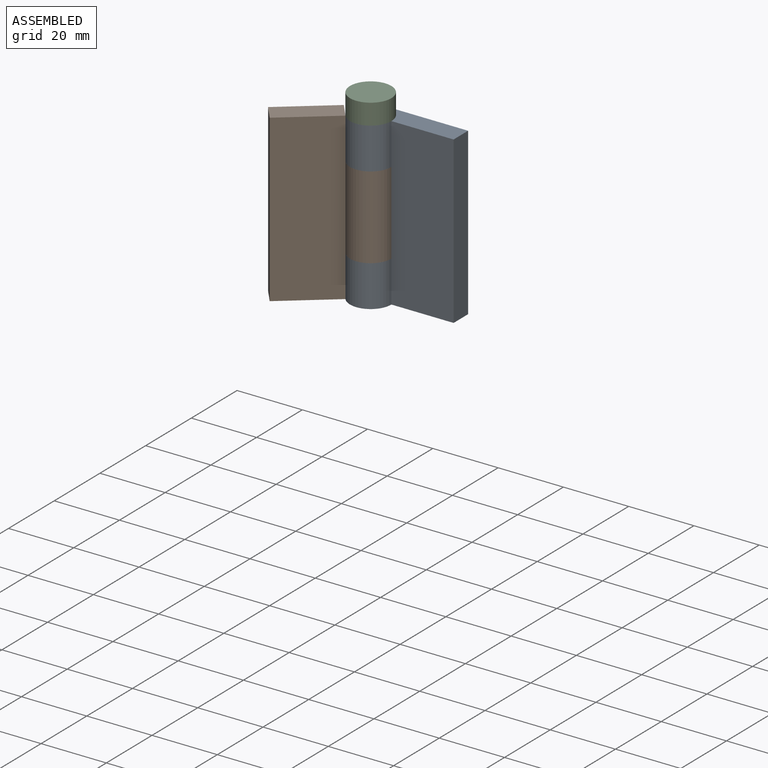
[diagram: assembled view]
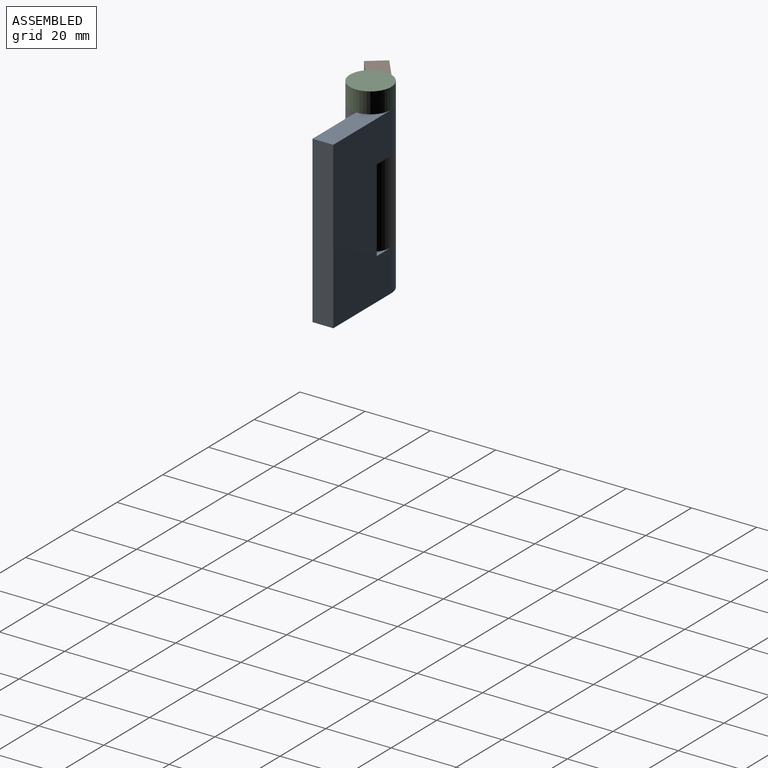
[diagram: assembled view, second angle]
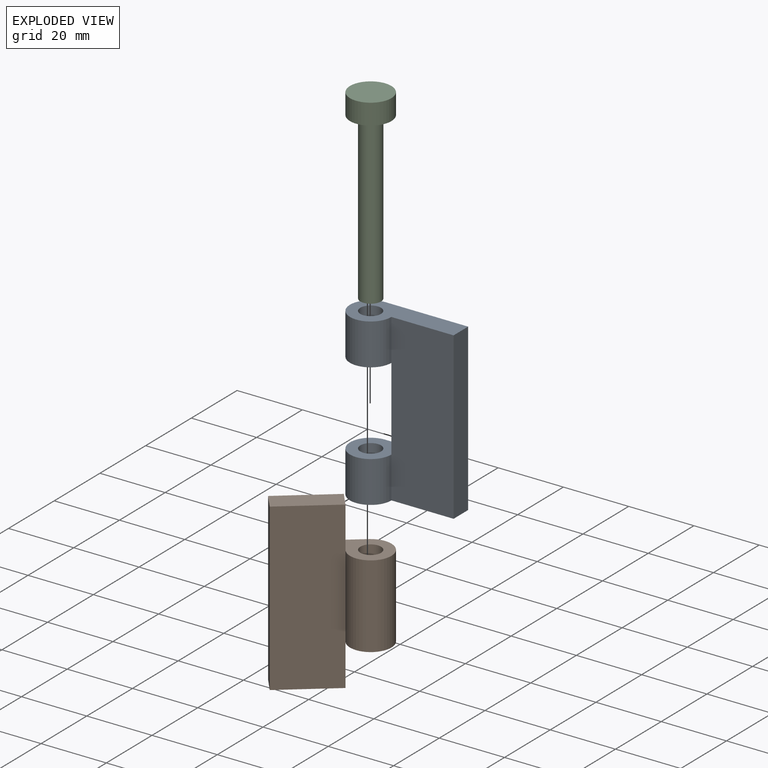
[diagram: exploded view]
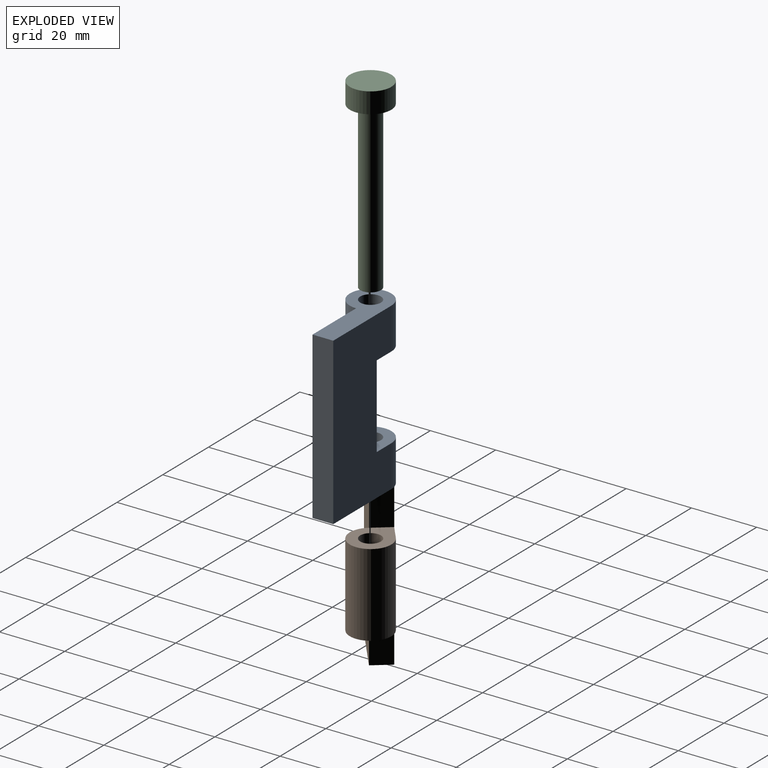
[diagram: exploded view, second angle]
ASSEMBLY  parts=3 mates=2
PART A: 12 faces, bbox 31.8x12.7x50.8 mm
  f0: cylinder r=3.17mm len=12.7mm, axis (0,0,1), area 253.4mm2, adj f4,f9
  f1: cylinder r=6.35mm len=12.7mm, axis (0,0,1), area 380mm2, adj f4,f5,f6,f9
  f2: plane 50.8x6.35mm, normal (-1,0,0), area 322.6mm2, adj f3,f4,f5,f6
  f3: plane 31.75x12.7mm, normal (0,0,-1), area 224.6mm2, adj f2,f5,f6,f7,f8
  f4: plane 31.75x12.7mm, normal (0,0,1), area 224.6mm2, adj f0,f1,f2,f5,f6
  f5: plane 50.8x19.05mm, normal (0,-1,0), area 967.7mm2, adj f1,f2,f3,f4,f8,f11
  f6: plane 50.8x25.4mm, normal (0,1,0), area 1129mm2, adj f1,f2,f3,f4,f8,f9,f10,f11
  f7: cylinder r=3.17mm len=12.7mm, axis (0,0,1), area 253.4mm2, adj f3,f10
  f8: cylinder r=6.35mm len=12.7mm, axis (0,0,1), area 380mm2, adj f3,f5,f6,f10
  f9: plane 12.7x12.7mm, normal (0,0,-1), area 103.7mm2, adj f0,f1,f6,f11
  f10: plane 12.7x12.7mm, normal (0,0,1), area 103.7mm2, adj f6,f7,f8,f11
  f11: plane 25.4x6.35mm, normal (1,0,0), area 161.3mm2, adj f5,f6,f9,f10
PART B: 11 faces, bbox 31.8x12.7x50.8 mm
  f0: plane 50.8x25.4mm, normal (0,1,0), area 1129mm2, adj f1,f2,f3,f5,f6,f7,f8,f9
  f1: plane 19.05x6.35mm, normal (0,0,-1), area 121mm2, adj f0,f3,f4,f7
  f2: plane 19.05x6.35mm, normal (0,0,1), area 121mm2, adj f0,f3,f4,f9
  f3: plane 50.8x6.35mm, normal (-1,0,0), area 322.6mm2, adj f0,f1,f2,f4
  f4: plane 50.8x19.05mm, normal (0,-1,0), area 967.7mm2, adj f1,f2,f3,f5,f7,f9
  f5: cylinder r=6.35mm len=25.4mm, axis (0,0,1), area 760.1mm2, adj f0,f4,f6,f8
  f6: plane 12.7x12.7mm, normal (0,0,-1), area 103.7mm2, adj f0,f5,f7,f10
  f7: plane 12.7x6.35mm, normal (1,0,0), area 80.6mm2, adj f0,f1,f4,f6
  f8: plane 12.7x12.7mm, normal (0,0,1), area 103.7mm2, adj f0,f5,f9,f10
  f9: plane 12.7x6.35mm, normal (1,0,0), area 80.6mm2, adj f0,f2,f4,f8
  f10: cylinder r=3.17mm len=25.4mm, axis (0,0,1), area 506.7mm2, adj f6,f8
PART C: 5 faces, bbox 12.7x12.7x57.2 mm
  f0: cylinder r=3.17mm len=50.8mm, axis (0,0,-1), area 1013.4mm2, adj f1,f4
  f1: plane 6.35x6.35mm, normal (0,0,-1), area 31.7mm2, adj f0
  f2: cylinder r=6.35mm len=12.7mm, axis (0,0,-1), area 253.4mm2, adj f3,f4
  f3: plane 12.7x12.7mm, normal (0,0,1), area 126.7mm2, adj f2
  f4: plane 12.7x12.7mm, normal (0,0,-1), area 95mm2, adj f0,f2
PLACE A rot(axis=(0,-1,0),180deg) t=(-4.54,-20.88,52.6)mm
PLACE B rot(axis=(0,0,1),38.7deg) t=(-53.73,-38.16,1.8)mm
PLACE C t=(-29.94,-27.23,1.8)mm fixed
MATE revolute C.f0 <-> B.f5  axis (0,0,-1) through (-29.94,-27.23,27.2)mm
MATE fastened A.f0 <-> C.f0  axis (0,0,1) through (-29.94,-27.23,52.6)mm
